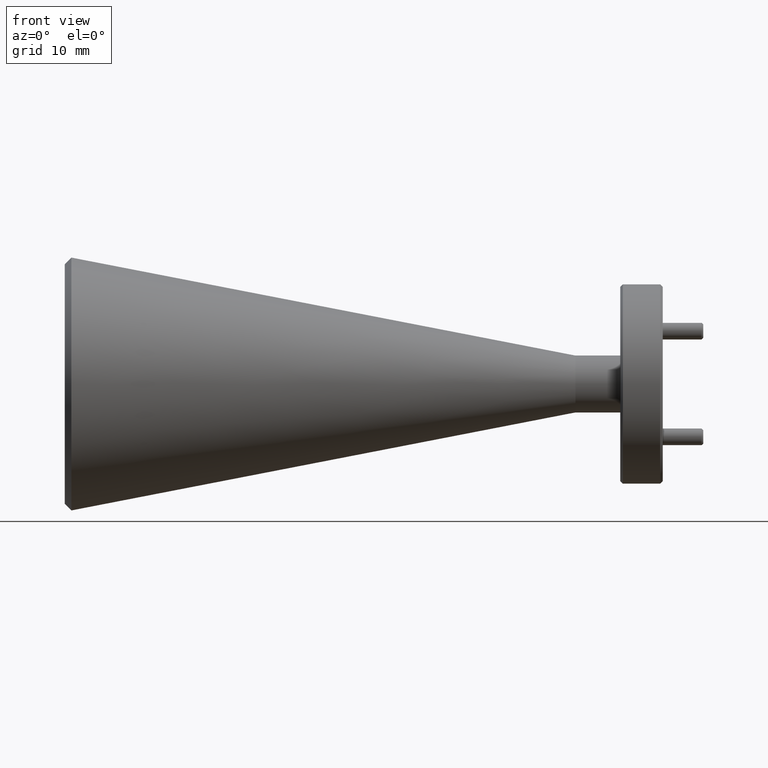
[diagram: clean part render]
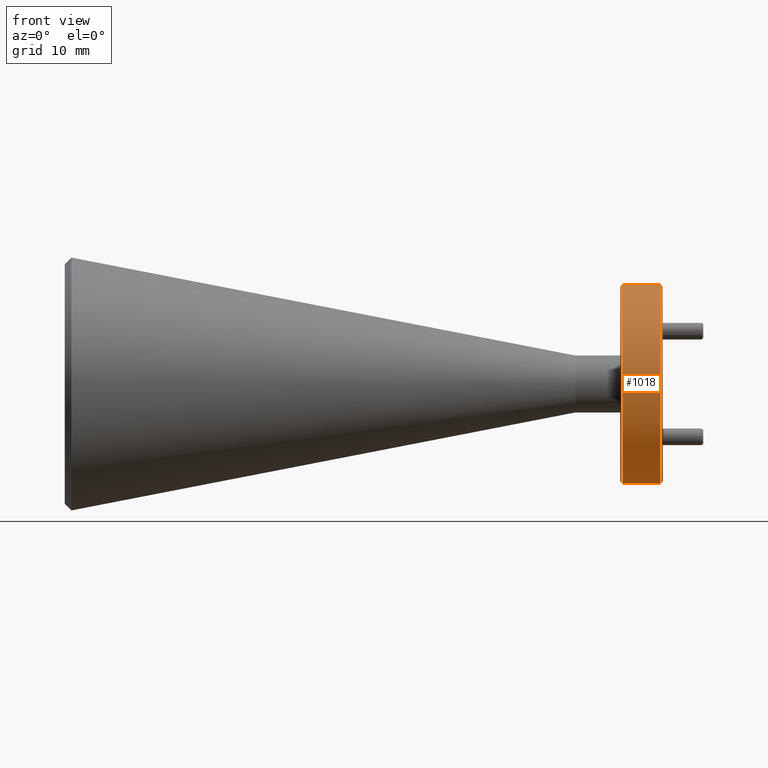
[diagram: same view with one face highlighted and labeled with its STEP entity id]
A machine part, front view. The second image highlights one B-rep face of the part: STEP entity #1018.
In plain terms, the highlighted cylindrical surface (partial cylindrical patch) has radius 9.525 mm, axis along (1, -0, -0).
Its self-contained STEP definition (entity closure, byte-faithful):
#103 = EDGE_CURVE ( 'NONE', #1709, #1227, #1921, .T. ) ;
#125 = LINE ( 'NONE', #859, #965 ) ;
#191 = VERTEX_POINT ( 'NONE', #1648 ) ;
#327 = ORIENTED_EDGE ( 'NONE', *, *, #886, .T. ) ;
#385 = CIRCLE ( 'NONE', #1245, 0.3749999999999999445 ) ;
#647 = DIRECTION ( 'NONE',  ( 1.000000000000000000, -0.000000000000000000, -0.000000000000000000 ) ) ;
#673 = DIRECTION ( 'NONE',  ( -1.000000000000000000, 0.000000000000000000, 0.000000000000000000 ) ) ;
#829 = DIRECTION ( 'NONE',  ( 1.000000000000000000, -0.000000000000000000, -0.000000000000000000 ) ) ;
#859 = CARTESIAN_POINT ( 'NONE',  ( 1.789620190425750046, 1.132380905805825178, 1.629287461640205992 ) ) ;
#886 = EDGE_CURVE ( 'NONE', #191, #1563, #385, .T. ) ;
#935 = VECTOR ( 'NONE', #647, 39.37007874015748143 ) ;
#965 = VECTOR ( 'NONE', #829, 39.37007874015748143 ) ;
#1018 = ADVANCED_FACE ( 'NONE', ( #1871 ), #1506, .T. ) ;
#1196 = EDGE_CURVE ( 'NONE', #191, #1227, #125, .T. ) ;
#1209 = CARTESIAN_POINT ( 'NONE',  ( 1.779620190425750481, 1.132380905805825178, 1.254287461640205992 ) ) ;
#1227 = VERTEX_POINT ( 'NONE', #2102 ) ;
#1245 = AXIS2_PLACEMENT_3D ( 'NONE', #1434, #1962, #1286 ) ;
#1286 = DIRECTION ( 'NONE',  ( 0.000000000000000000, 0.000000000000000000, 1.000000000000000000 ) ) ;
#1334 = DIRECTION ( 'NONE',  ( 0.000000000000000000, 0.000000000000000000, -1.000000000000000000 ) ) ;
#1434 = CARTESIAN_POINT ( 'NONE',  ( 1.639620190425750357, 1.132380905805825178, 1.254287461640205992 ) ) ;
#1497 = DIRECTION ( 'NONE',  ( 1.000000000000000000, -0.000000000000000000, -0.000000000000000000 ) ) ;
#1506 = CYLINDRICAL_SURFACE ( 'NONE', #1995, 0.3749999999999999445 ) ;
#1563 = VERTEX_POINT ( 'NONE', #2119 ) ;
#1570 = LINE ( 'NONE', #2279, #935 ) ;
#1648 = CARTESIAN_POINT ( 'NONE',  ( 1.639620190425750357, 1.132380905805825178, 1.629287461640205992 ) ) ;
#1663 = ORIENTED_EDGE ( 'NONE', *, *, #103, .T. ) ;
#1665 = CARTESIAN_POINT ( 'NONE',  ( 1.789620190425750046, 1.132380905805825178, 1.254287461640205992 ) ) ;
#1709 = VERTEX_POINT ( 'NONE', #1779 ) ;
#1732 = DIRECTION ( 'NONE',  ( 0.000000000000000000, 0.000000000000000000, -1.000000000000000000 ) ) ;
#1779 = CARTESIAN_POINT ( 'NONE',  ( 1.779620190425750481, 1.132380905805825178, 0.8792874616402061028 ) ) ;
#1845 = AXIS2_PLACEMENT_3D ( 'NONE', #1209, #673, #1732 ) ;
#1871 = FACE_OUTER_BOUND ( 'NONE', #2323, .T. ) ;
#1921 = CIRCLE ( 'NONE', #1845, 0.3749999999999999445 ) ;
#1962 = DIRECTION ( 'NONE',  ( 1.000000000000000000, -0.000000000000000000, -0.000000000000000000 ) ) ;
#1995 = AXIS2_PLACEMENT_3D ( 'NONE', #1665, #1497, #1334 ) ;
#2102 = CARTESIAN_POINT ( 'NONE',  ( 1.779620190425750481, 1.132380905805825178, 1.629287461640205992 ) ) ;
#2104 = ORIENTED_EDGE ( 'NONE', *, *, #2254, .T. ) ;
#2119 = CARTESIAN_POINT ( 'NONE',  ( 1.639620190425750357, 1.132380905805825178, 0.8792874616402061028 ) ) ;
#2187 = ORIENTED_EDGE ( 'NONE', *, *, #1196, .F. ) ;
#2254 = EDGE_CURVE ( 'NONE', #1563, #1709, #1570, .T. ) ;
#2279 = CARTESIAN_POINT ( 'NONE',  ( 1.789620190425750046, 1.132380905805825178, 0.8792874616402061028 ) ) ;
#2323 = EDGE_LOOP ( 'NONE', ( #2187, #327, #2104, #1663 ) ) ;